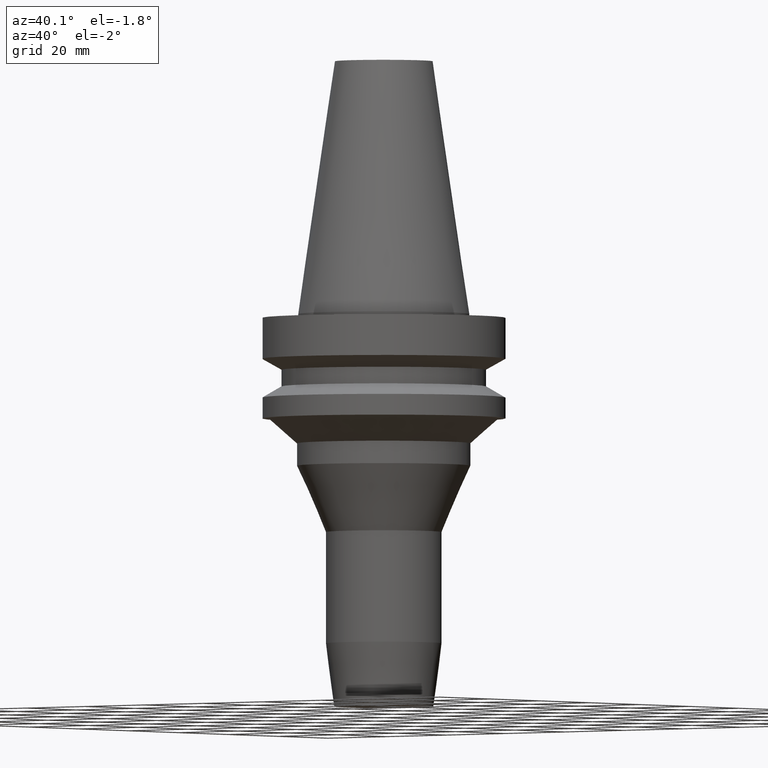
[diagram: clean part render]
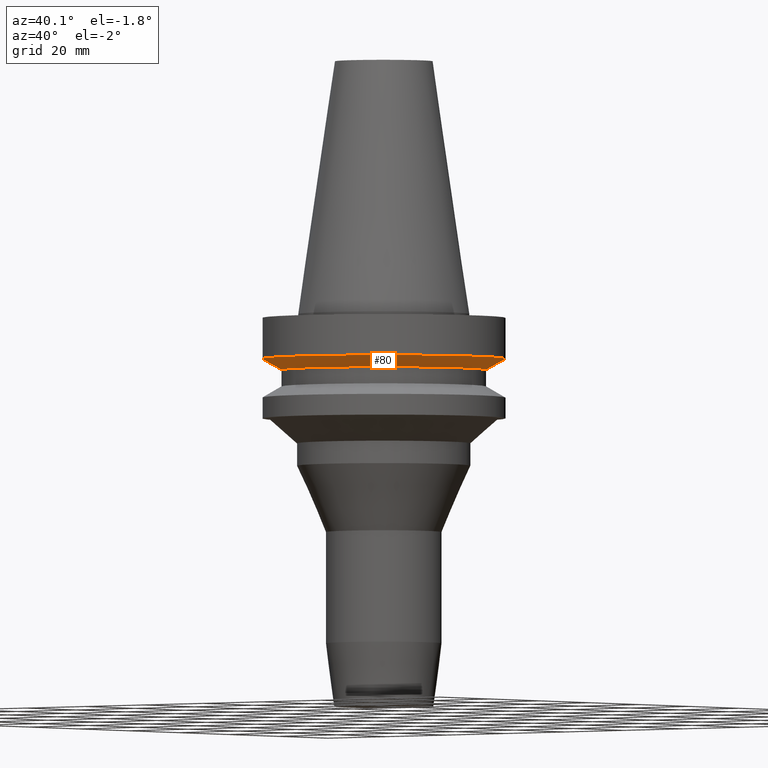
[diagram: same view with one face highlighted and labeled with its STEP entity id]
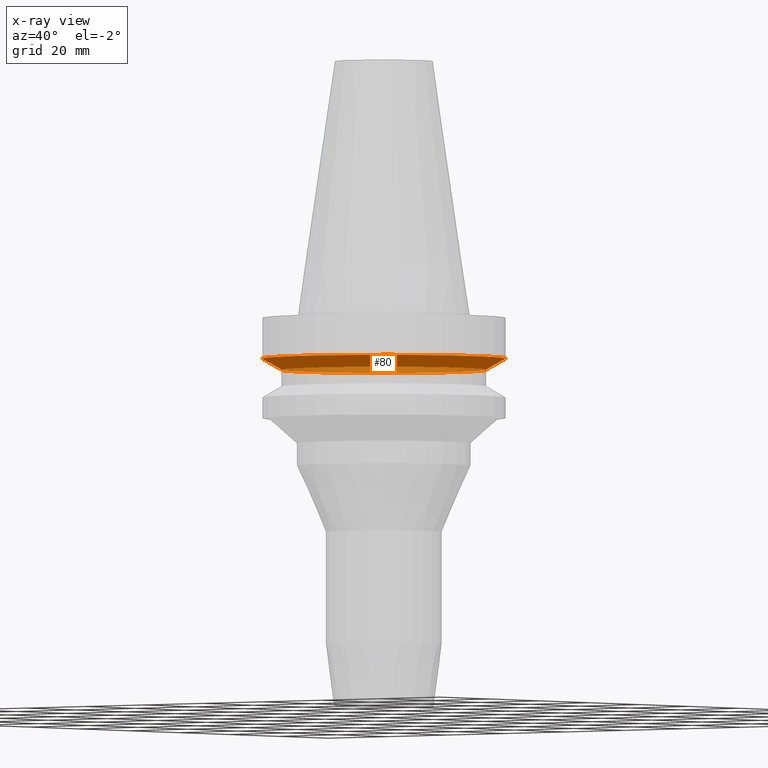
[diagram: x-ray of the same camera — body ghosted, the highlighted face saturated]
A machine part, auxiliary view. The second image highlights one B-rep face of the part: STEP entity #80.
The next image is the same camera in x-ray: the body ghosted, the highlighted face saturated — about 27% of this face is hidden behind the body in this view.
In plain terms, the highlighted conical surface has half-angle 60 deg.
Its self-contained STEP definition (entity closure, byte-faithful):
#80=ADVANCED_FACE('Unnamed[1]',(#191,#192),#193,.T.);
#97=EDGE_CURVE('Unnamed[1]',#219,#219,#220,.T.);
#99=EDGE_CURVE('Unnamed[1]',#222,#222,#223,.T.);
#191=FACE_BOUND('',#333,.T.);
#192=FACE_BOUND('',#334,.T.);
#193=CONICAL_SURFACE('',#335,28.9999999999998,1.04719755119657);
#219=VERTEX_POINT('',#368);
#220=CIRCLE('',#369,26.4999999999994);
#222=VERTEX_POINT('',#372);
#223=CIRCLE('',#373,31.5000000000003);
#333=EDGE_LOOP('',(#485));
#334=EDGE_LOOP('',(#486));
#335=AXIS2_PLACEMENT_3D('',#487,#488,#489);
#368=CARTESIAN_POINT('',(8.8494551369045E-016,26.4999999999995,-14.4522569986152));
#369=AXIS2_PLACEMENT_3D('',#517,#518,#519);
#372=CARTESIAN_POINT('',(7.08182973902924E-016,31.5000000000004,-11.5655056526664));
#373=AXIS2_PLACEMENT_3D('',#520,#521,#522);
#485=ORIENTED_EDGE('',*,*,#97,.F.);
#486=ORIENTED_EDGE('',*,*,#99,.T.);
#487=CARTESIAN_POINT('',(7.96564243796687E-016,7.52492620931863E-014,-13.0088813256408));
#488=DIRECTION('',(-6.12323399573677E-017,2.41671098804019E-017,1.0));
#489=DIRECTION('',(-3.34734404278956E-033,1.0,-2.41671098804019E-017));
#517=CARTESIAN_POINT('',(8.8494551369045E-016,7.52143798746989E-014,-14.4522569986152));
#518=DIRECTION('',(6.12323399573677E-017,-2.41671098803687E-017,-1.0));
#519=DIRECTION('',(-3.34734404278822E-033,1.0,-2.41671098803687E-017));
#520=CARTESIAN_POINT('',(7.08182973902924E-016,7.52841443116738E-014,-11.5655056526664));
#521=DIRECTION('',(6.12323399573677E-017,-2.41671098804298E-017,-1.0));
#522=DIRECTION('',(-3.34734404278499E-033,1.0,-2.41671098804298E-017));